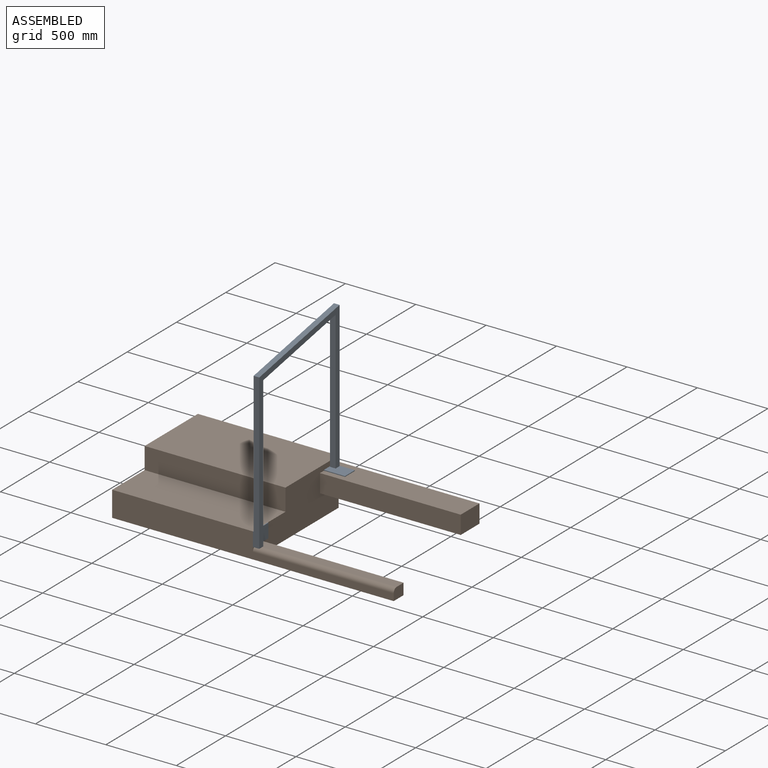
[diagram: assembled view]
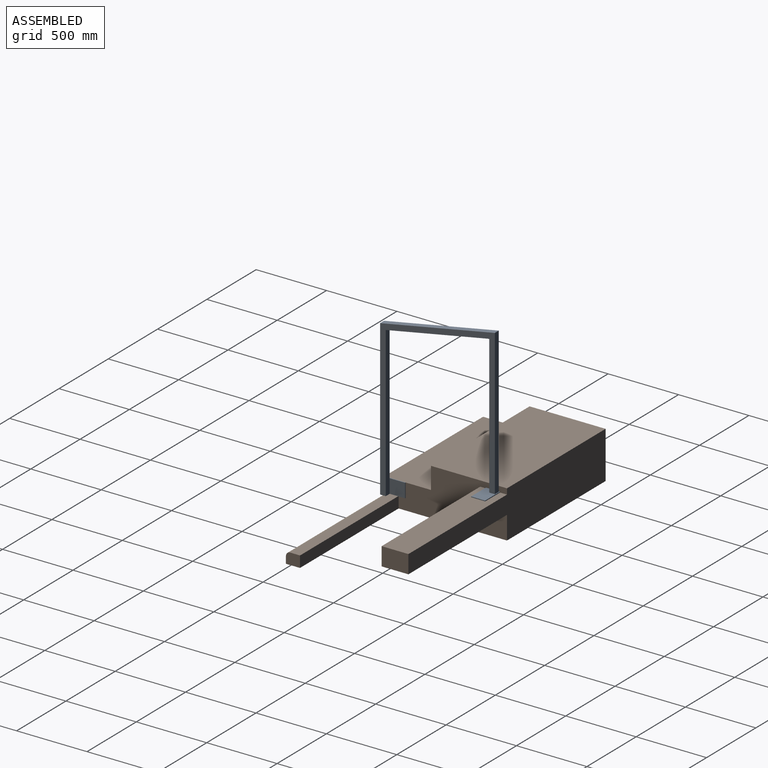
[diagram: assembled view, second angle]
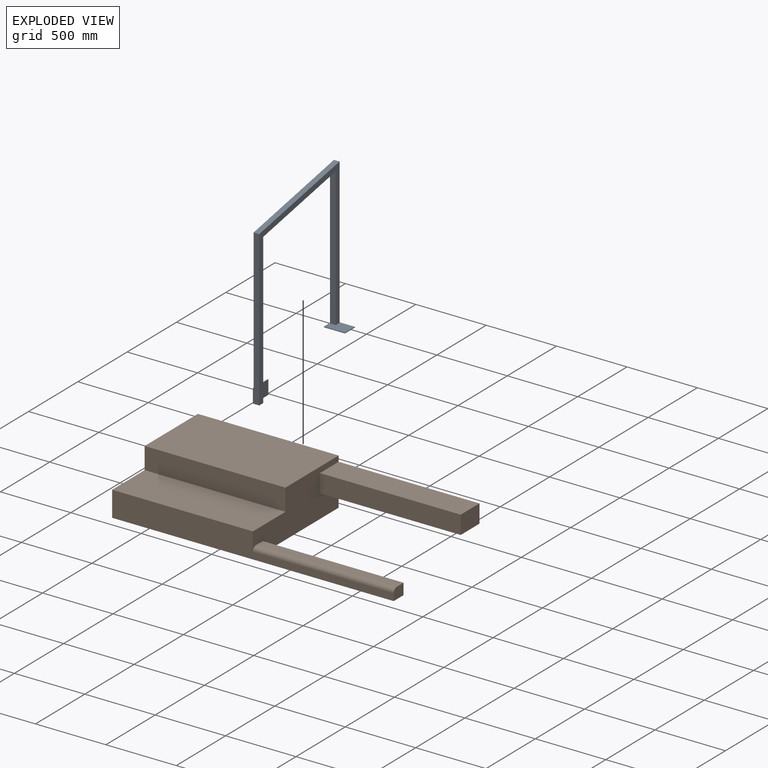
[diagram: exploded view]
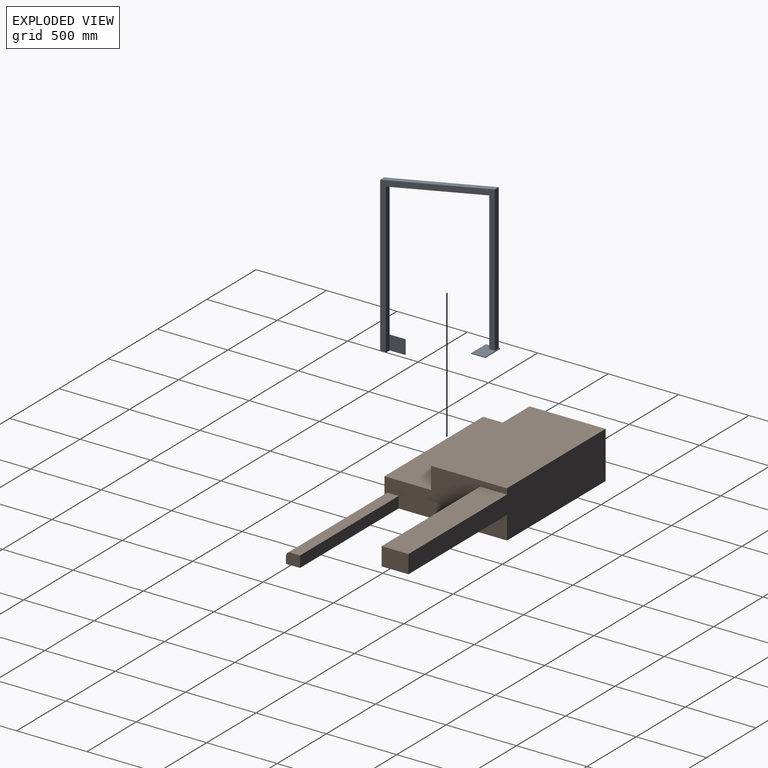
[diagram: exploded view, second angle]
ASSEMBLY  parts=2 mates=3
PART A: 21 faces, bbox 150x820x1255 mm
  f0: plane 1066.89x40mm, normal (0,1,0), area 42675.6mm2, adj f1,f3,f7,f8,f18
  f1: plane 110x100mm, normal (1,0,0), area 11000mm2, adj f0,f3,f4,f5
  f2: plane 1100x45mm, normal (0,-1,0), area 44500mm2, adj f3,f5,f6,f7,f8,f19
  f3: plane 150x45mm, normal (0,0,-1), area 2350mm2, adj f0,f1,f2,f4,f6,f7
  f4: plane 100x5mm, normal (0,1,0), area 500mm2, adj f1,f3,f5,f6
  f5: plane 150x5mm, normal (0,0,1), area 750mm2, adj f1,f2,f4,f6,f8
  f6: plane 150x100mm, normal (-1,0,0), area 15000mm2, adj f2,f3,f4,f5
  f7: plane 1255x815mm, normal (1,0,0), area 115328.9mm2, adj f0,f2,f3,f9,f10,f15,f17,f18
  f8: plane 1155x815mm, normal (-1,0,0), area 111328.9mm2, adj f0,f2,f5,f9,f10,f15,f17,f18
  f9: plane 986.68x40mm, normal (0,-1,0), area 39467mm2, adj f7,f8,f15,f18
  f10: plane 40x0.1mm, normal (0,-1,0), area 3.9mm2, adj f7,f8,f19,f20
  f11: plane 150x5mm, normal (0,1,0), area 750mm2, adj f12,f14,f15,f16
  f12: plane 100x5mm, normal (-1,0,0), area 500mm2, adj f11,f13,f15,f16
  f13: plane 150x5mm, normal (0,-1,0), area 750mm2, adj f12,f14,f15,f16
  f14: plane 100x5mm, normal (1,0,0), area 500mm2, adj f11,f13,f15,f16
  f15: plane 150x100mm, normal (0,0,1), area 13400mm2, adj f7,f8,f9,f11,f12,f13,f14,f17
  f16: plane 150x100mm, normal (0,0,-1), area 15000mm2, adj f11,f12,f13,f14
  f17: plane 1035x40mm, normal (0,1,0), area 41400mm2, adj f7,f8,f15,f20
  f18: plane 735x139.79mm, normal (0,0.19,-0.98), area 29927mm2, adj f0,f7,f8,f9
  f19: plane 775x147.39mm, normal (0,-0.19,0.98), area 31555.7mm2, adj f2,f7,f8,f10
  f20: plane 40x40mm, normal (0,-0.18,0.98), area 1628mm2, adj f7,f8,f10,f17
PART B: 16 faces, bbox 2000x870x335 mm
  f0: plane 870x335mm, normal (1,0,0), area 207793.1mm2, adj f2,f3,f4,f5,f6,f7,f8,f9
  f1: plane 870x335mm, normal (-1,0,0), area 240300mm2, adj f2,f3,f4,f5,f6,f7
  f2: plane 2000x180mm, normal (0,-1,0), area 230000mm2, adj f0,f1,f3,f4,f13,f15
  f3: plane 1000x330mm, normal (0,0,1), area 330000mm2, adj f0,f1,f2,f5
  f4: plane 2000x870mm, normal (0,0,-1), area 970000mm2, adj f0,f1,f2,f6,f14,f15
  f5: plane 1000x155mm, normal (0,-1,0), area 155000mm2, adj f0,f1,f3,f7
  f6: plane 2000x335mm, normal (0,1,0), area 465000mm2, adj f0,f1,f4,f7,f8,f9,f11
  f7: plane 1000x540mm, normal (0,0,1), area 540000mm2, adj f0,f1,f5,f6
  f8: plane 1000x190mm, normal (0,0,-1), area 190000mm2, adj f0,f6,f10,f11
  f9: plane 1000x190mm, normal (0,0,1), area 190000mm2, adj f0,f6,f10,f11
  f10: plane 1000x130mm, normal (0,-1,0), area 130000mm2, adj f0,f8,f9,f11
  f11: plane 190x130mm, normal (1,0,0), area 24700mm2, adj f6,f8,f9,f10
  f12: plane 1000x70mm, normal (0,0,1), area 70000mm2, adj f0,f13,f14,f15
  f13: cylinder r=30mm len=1000mm, axis (-1,0,0), area 47123.9mm2, adj f0,f2,f12,f15
  f14: plane 1000x80mm, normal (0,1,0), area 80000mm2, adj f0,f4,f12,f15
  f15: plane 100x80mm, normal (1,0,0), area 7806.9mm2, adj f2,f4,f12,f13,f14
PLACE A t=(1785.23,-987.63,-157.96)mm
PLACE B t=(785.23,-117.63,-237.96)mm
MATE planar B.f0 <-> A.f6  axis (1,0,0) through (1785.23,-512.16,-95.22)mm
MATE planar A.f16 <-> B.f9  axis (0,0,-1) through (1860.23,-217.63,57.04)mm
MATE planar A.f2 <-> B.f2  axis (0,-1,0) through (1809.98,-987.63,386.42)mm
